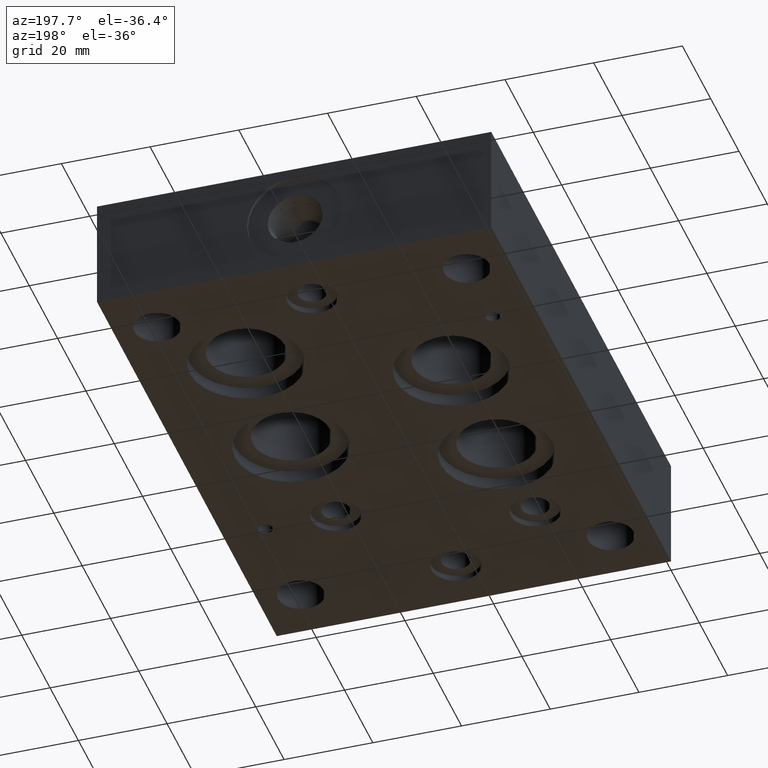
[diagram: clean part render]
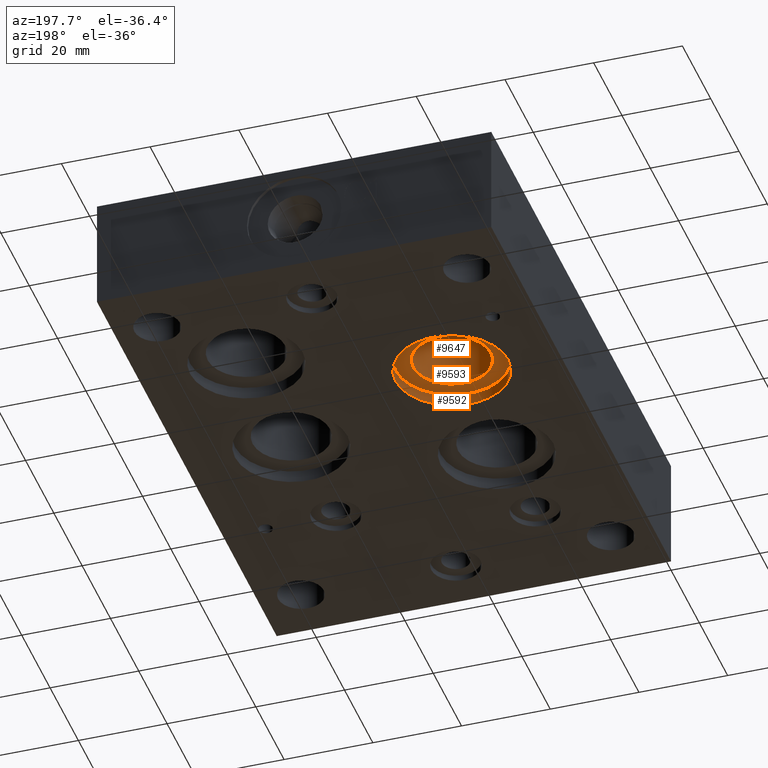
[diagram: same view with one multi-face feature highlighted, each face labeled with its STEP entity id]
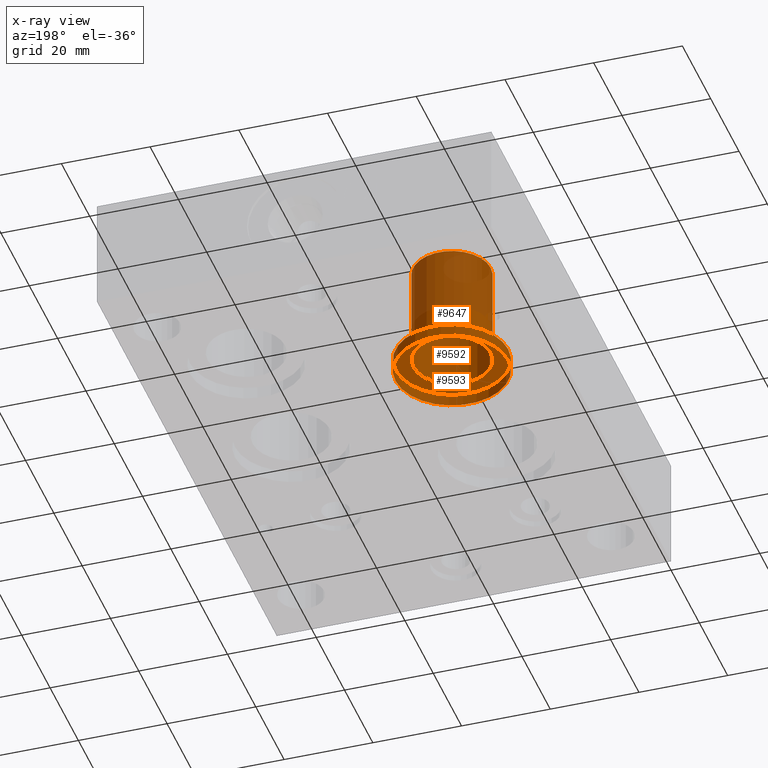
[diagram: x-ray of the same camera — body ghosted, the whole feature saturated]
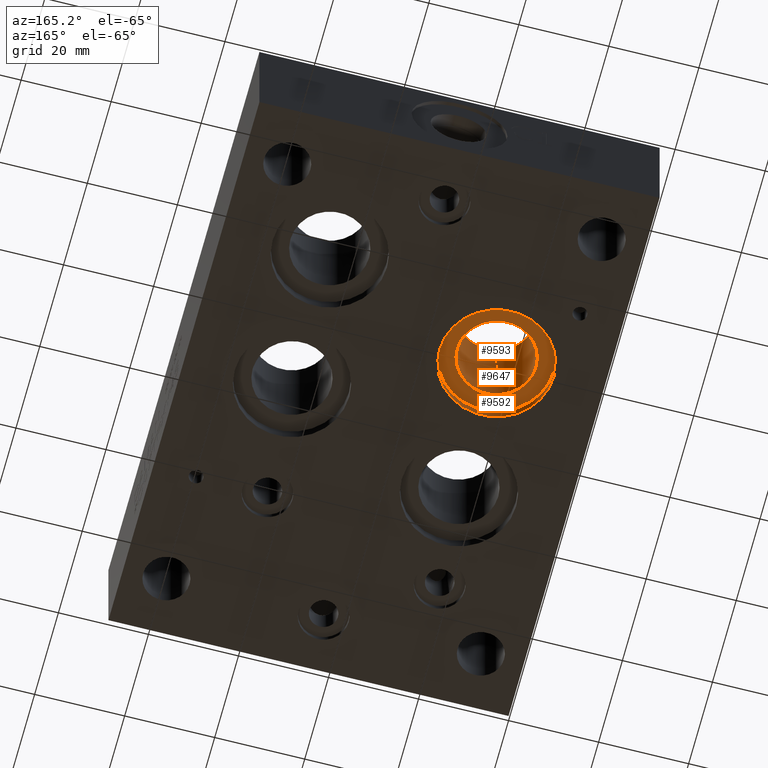
[diagram: same view with one multi-face feature highlighted, each face labeled with its STEP entity id]
A machine part, auxiliary view. The highlighted faces form ONE feature: a stepped (counterbored) hole: 2 coaxial cylindrical walls of radii 8.7376 -> 12.7 mm joined by 1 annular planar shoulder face(s). The faces share edges in the B-rep.
The next image is the same camera in x-ray: the body ghosted and the whole hole feature saturated, so the bore chain is visible through the body.
A second angle (auxiliary view) of the same feature is appended — it is thin or edge-on in the first view.
Their STEP definitions:
[1] entity #9592 (Cylinder):
#79=CIRCLE('',#10030,12.7);
#80=CIRCLE('',#10031,12.7);
#81=CIRCLE('',#10032,12.7);
#82=CIRCLE('',#10033,12.7);
#224=CYLINDRICAL_SURFACE('',#10029,12.7);
#1064=FACE_OUTER_BOUND('',#1572,.T.);
#1572=EDGE_LOOP('',(#7961,#7962,#7963,#7964,#7965,#7966));
#2575=LINE('',#16068,#3514);
#3514=VECTOR('',#11813,12.7);
#4346=VERTEX_POINT('',#16063);
#4347=VERTEX_POINT('',#16064);
#4348=VERTEX_POINT('',#16067);
#4349=VERTEX_POINT('',#16069);
#5628=EDGE_CURVE('',#4346,#4347,#79,.T.);
#5629=EDGE_CURVE('',#4347,#4346,#80,.T.);
#5630=EDGE_CURVE('',#4347,#4348,#2575,.T.);
#5631=EDGE_CURVE('',#4349,#4348,#81,.T.);
#5632=EDGE_CURVE('',#4348,#4349,#82,.T.);
#7961=ORIENTED_EDGE('',*,*,#5628,.F.);
#7962=ORIENTED_EDGE('',*,*,#5629,.F.);
#7963=ORIENTED_EDGE('',*,*,#5630,.T.);
#7964=ORIENTED_EDGE('',*,*,#5631,.F.);
#7965=ORIENTED_EDGE('',*,*,#5632,.F.);
#7966=ORIENTED_EDGE('',*,*,#5630,.F.);
#9592=ADVANCED_FACE('',(#1064),#224,.F.);
#10029=AXIS2_PLACEMENT_3D('',#16062,#11807,#11808);
#10030=AXIS2_PLACEMENT_3D('',#16065,#11809,#11810);
#10031=AXIS2_PLACEMENT_3D('',#16066,#11811,#11812);
#10032=AXIS2_PLACEMENT_3D('',#16070,#11814,#11815);
#10033=AXIS2_PLACEMENT_3D('',#16071,#11816,#11817);
#11807=DIRECTION('center_axis',(0.,0.,-1.));
#11808=DIRECTION('ref_axis',(1.,0.,0.));
#11809=DIRECTION('center_axis',(0.,0.,1.));
#11810=DIRECTION('ref_axis',(1.,0.,0.));
#11811=DIRECTION('center_axis',(0.,0.,1.));
#11812=DIRECTION('ref_axis',(1.,0.,0.));
#11813=DIRECTION('',(0.,0.,1.));
#11814=DIRECTION('center_axis',(0.,0.,-1.));
#11815=DIRECTION('ref_axis',(1.,0.,0.));
#11816=DIRECTION('center_axis',(0.,0.,-1.));
#11817=DIRECTION('ref_axis',(1.,0.,0.));
#16062=CARTESIAN_POINT('Origin',(23.8252,80.1624,1.397));
#16063=CARTESIAN_POINT('',(36.5252,80.1624,0.));
#16064=CARTESIAN_POINT('',(11.1252,80.1624,0.));
#16065=CARTESIAN_POINT('Origin',(23.8252,80.1624,0.));
#16066=CARTESIAN_POINT('Origin',(23.8252,80.1624,0.));
#16067=CARTESIAN_POINT('',(11.1252,80.1624,2.794));
#16068=CARTESIAN_POINT('',(11.1252,80.1624,1.397));
#16069=CARTESIAN_POINT('',(36.5252,80.1624,2.794));
#16070=CARTESIAN_POINT('Origin',(23.8252,80.1624,2.794));
#16071=CARTESIAN_POINT('Origin',(23.8252,80.1624,2.794));
[2] entity #9647 (Cylinder):
#83=CIRCLE('',#10035,8.7376);
#182=CIRCLE('',#10188,8.7376);
#183=CIRCLE('',#10189,8.7376);
#250=CYLINDRICAL_SURFACE('',#10187,8.7376);
#1119=FACE_OUTER_BOUND('',#1637,.T.);
#1637=EDGE_LOOP('',(#8255,#8256,#8257,#8258,#8259));
#2618=LINE('',#16427,#3557);
#3557=VECTOR('',#12172,8.7376);
#4350=VERTEX_POINT('',#16073);
#4455=VERTEX_POINT('',#16423);
#4456=VERTEX_POINT('',#16424);
#5633=EDGE_CURVE('',#4350,#4350,#83,.T.);
#5779=EDGE_CURVE('',#4455,#4456,#182,.T.);
#5780=EDGE_CURVE('',#4456,#4455,#183,.T.);
#5781=EDGE_CURVE('',#4456,#4350,#2618,.T.);
#8255=ORIENTED_EDGE('',*,*,#5779,.F.);
#8256=ORIENTED_EDGE('',*,*,#5780,.F.);
#8257=ORIENTED_EDGE('',*,*,#5781,.T.);
#8258=ORIENTED_EDGE('',*,*,#5633,.F.);
#8259=ORIENTED_EDGE('',*,*,#5781,.F.);
#9647=ADVANCED_FACE('',(#1119),#250,.F.);
#10035=AXIS2_PLACEMENT_3D('',#16074,#11820,#11821);
#10187=AXIS2_PLACEMENT_3D('',#16422,#12166,#12167);
#10188=AXIS2_PLACEMENT_3D('',#16425,#12168,#12169);
#10189=AXIS2_PLACEMENT_3D('',#16426,#12170,#12171);
#11820=DIRECTION('center_axis',(0.,0.,1.));
#11821=DIRECTION('ref_axis',(1.,0.,0.));
#12166=DIRECTION('center_axis',(0.,0.,1.));
#12167=DIRECTION('ref_axis',(1.,0.,0.));
#12168=DIRECTION('center_axis',(0.,0.,-1.));
#12169=DIRECTION('ref_axis',(1.,0.,0.));
#12170=DIRECTION('center_axis',(0.,0.,-1.));
#12171=DIRECTION('ref_axis',(1.,0.,0.));
#12172=DIRECTION('',(0.,0.,-1.));
#16073=CARTESIAN_POINT('',(15.0876,80.1624,2.794));
#16074=CARTESIAN_POINT('Origin',(23.8252,80.1624,2.794));
#16422=CARTESIAN_POINT('Origin',(23.8252,80.1624,17.145));
#16423=CARTESIAN_POINT('',(32.5628,80.1624,25.4));
#16424=CARTESIAN_POINT('',(15.0876,80.1624,25.4));
#16425=CARTESIAN_POINT('Origin',(23.8252,80.1624,25.4));
#16426=CARTESIAN_POINT('Origin',(23.8252,80.1624,25.4));
#16427=CARTESIAN_POINT('',(15.0876,80.1624,17.145));
[3] entity #9593 (Plane):
#81=CIRCLE('',#10032,12.7);
#82=CIRCLE('',#10033,12.7);
#83=CIRCLE('',#10035,8.7376);
#290=FACE_BOUND('',#1574,.T.);
#1065=FACE_OUTER_BOUND('',#1573,.T.);
#1573=EDGE_LOOP('',(#7967,#7968));
#1574=EDGE_LOOP('',(#7969));
#4348=VERTEX_POINT('',#16067);
#4349=VERTEX_POINT('',#16069);
#4350=VERTEX_POINT('',#16073);
#5631=EDGE_CURVE('',#4349,#4348,#81,.T.);
#5632=EDGE_CURVE('',#4348,#4349,#82,.T.);
#5633=EDGE_CURVE('',#4350,#4350,#83,.T.);
#7967=ORIENTED_EDGE('',*,*,#5631,.T.);
#7968=ORIENTED_EDGE('',*,*,#5632,.T.);
#7969=ORIENTED_EDGE('',*,*,#5633,.T.);
#8797=PLANE('',#10034);
#9593=ADVANCED_FACE('',(#1065,#290),#8797,.T.);
#10032=AXIS2_PLACEMENT_3D('',#16070,#11814,#11815);
#10033=AXIS2_PLACEMENT_3D('',#16071,#11816,#11817);
#10034=AXIS2_PLACEMENT_3D('',#16072,#11818,#11819);
#10035=AXIS2_PLACEMENT_3D('',#16074,#11820,#11821);
#11814=DIRECTION('center_axis',(0.,0.,-1.));
#11815=DIRECTION('ref_axis',(1.,0.,0.));
#11816=DIRECTION('center_axis',(0.,0.,-1.));
#11817=DIRECTION('ref_axis',(1.,0.,0.));
#11818=DIRECTION('center_axis',(0.,0.,-1.));
#11819=DIRECTION('ref_axis',(1.,0.,0.));
#11820=DIRECTION('center_axis',(0.,0.,1.));
#11821=DIRECTION('ref_axis',(1.,0.,0.));
#16067=CARTESIAN_POINT('',(11.1252,80.1624,2.794));
#16069=CARTESIAN_POINT('',(36.5252,80.1624,2.794));
#16070=CARTESIAN_POINT('Origin',(23.8252,80.1624,2.794));
#16071=CARTESIAN_POINT('Origin',(23.8252,80.1624,2.794));
#16072=CARTESIAN_POINT('Origin',(23.8252,80.1624,2.794));
#16073=CARTESIAN_POINT('',(15.0876,80.1624,2.794));
#16074=CARTESIAN_POINT('Origin',(23.8252,80.1624,2.794));